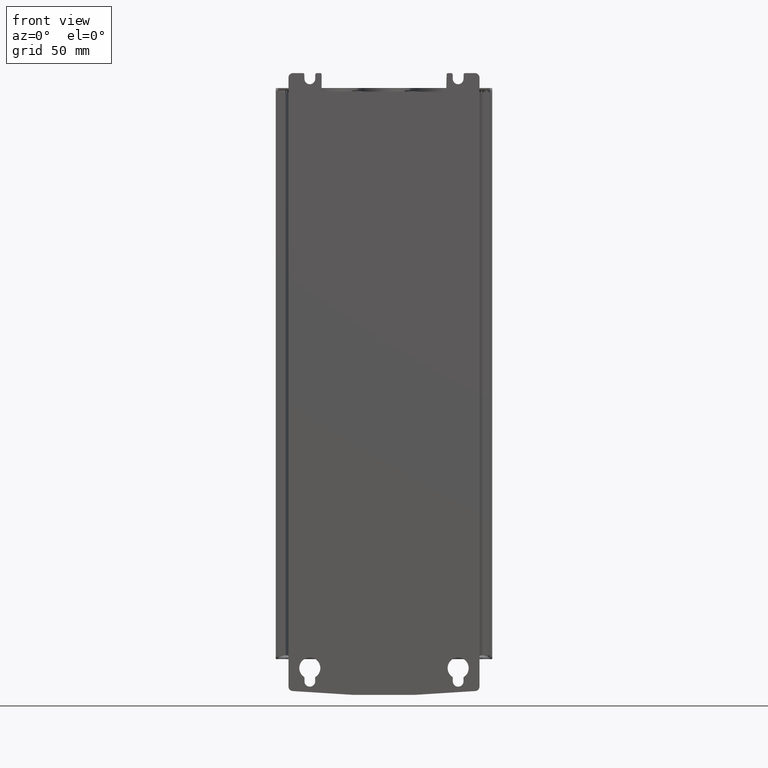
[diagram: clean part render]
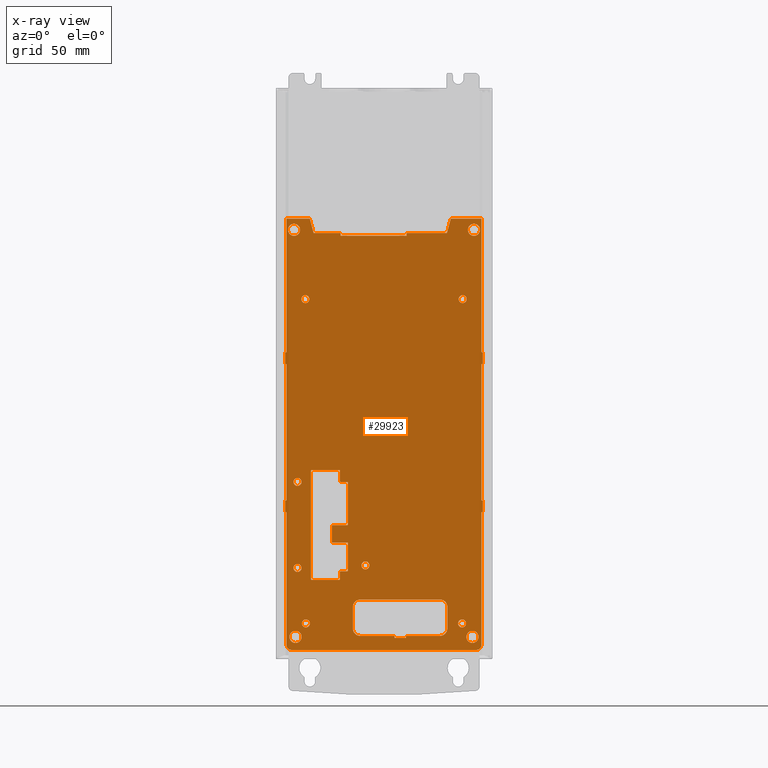
[diagram: x-ray — body ghosted, one internal face saturated and labeled with its STEP entity id]
A machine part, front view, then the same camera in x-ray: the body is ghosted and one INTERNAL B-rep face — a face not visible from any outside direction — is saturated and labeled: STEP entity #29923.
In plain terms, the highlighted planar face has unit normal (0, 1, 0).
Its self-contained STEP definition (entity closure, byte-faithful):
#26924=CARTESIAN_POINT('',(-7.704336030384E1,2.693888665624E1,
-2.609978598677E2));
#26925=DIRECTION('',(0.E0,-1.E0,0.E0));
#26926=DIRECTION('',(-9.999980315948E-1,0.E0,1.984138760385E-3));
#26927=AXIS2_PLACEMENT_3D('',#26924,#26925,#26926);
#26929=CARTESIAN_POINT('',(4.785667685526E1,2.693888665624E1,
-2.609978598677E2));
#26930=DIRECTION('',(0.E0,-1.E0,0.E0));
#26931=DIRECTION('',(0.E0,0.E0,-1.E0));
#26932=AXIS2_PLACEMENT_3D('',#26929,#26930,#26931);
#26934=DIRECTION('',(1.E0,0.E0,0.E0));
#26935=VECTOR('',#26934,1.E0);
#26936=CARTESIAN_POINT('',(5.105667685526E1,2.693888665624E1,
-1.714689618791E2));
#26937=LINE('',#26936,#26935);
#26938=DIRECTION('',(0.E0,0.E0,1.E0));
#26939=VECTOR('',#26938,8.E0);
#26940=CARTESIAN_POINT('',(5.205667685526E1,2.693888665624E1,
-1.714689618791E2));
#26941=LINE('',#26940,#26939);
#26942=DIRECTION('',(-1.E0,0.E0,0.E0));
#26943=VECTOR('',#26942,1.E0);
#26944=CARTESIAN_POINT('',(5.205667685526E1,2.693888665624E1,
-1.634689618791E2));
#26945=LINE('',#26944,#26943);
#26946=DIRECTION('',(1.E0,0.E0,1.421085471520E-14));
#26947=VECTOR('',#26946,1.E0);
#26948=CARTESIAN_POINT('',(5.105667685526E1,2.693888665624E1,
-7.146896187909E1));
#26949=LINE('',#26948,#26947);
#26950=DIRECTION('',(0.E0,0.E0,1.E0));
#26951=VECTOR('',#26950,8.E0);
#26952=CARTESIAN_POINT('',(5.205667685526E1,2.693888665624E1,
-7.146896187909E1));
#26953=LINE('',#26952,#26951);
#26954=DIRECTION('',(-1.E0,0.E0,2.842170943040E-14));
#26955=VECTOR('',#26954,1.E0);
#26956=CARTESIAN_POINT('',(5.205667685526E1,2.693888665624E1,
-6.346896187909E1));
#26957=LINE('',#26956,#26955);
#26958=DIRECTION('',(-2.588190503865E-1,0.E0,-9.659258248732E-1));
#26959=VECTOR('',#26958,1.008566196902E1);
#26960=CARTESIAN_POINT('',(3.046419074986E1,2.693888665624E1,2.653103812091E1));
#26961=LINE('',#26960,#26959);
#26962=DIRECTION('',(-1.E0,0.E0,3.174680134834E-8));
#26963=VECTOR('',#26962,2.718176355172E1);
#26964=CARTESIAN_POINT('',(2.785382929652E1,2.693888665624E1,1.678903676409E1));
#26965=LINE('',#26964,#26963);
#26966=DIRECTION('',(1.419146042472E-5,1.344278109441E-14,-9.999999998993E-1));
#26967=VECTOR('',#26966,1.849988895671E0);
#26968=CARTESIAN_POINT('',(6.720657447989E-1,2.693888665624E1,
1.678903762703E1));
#26969=LINE('',#26968,#26967);
#26970=DIRECTION('',(-9.999999999993E-1,1.160562098657E-13,-1.156538287751E-6));
#26971=VECTOR('',#26970,1.499988414775E0);
#26972=CARTESIAN_POINT('',(6.720919988431E-1,2.693888665624E1,
1.493904873154E1));
#26973=LINE('',#26972,#26971);
#26974=DIRECTION('',(-1.683766047401E-5,-1.110857501164E-11,9.999999998582E-1));
#26975=VECTOR('',#26974,9.786407208610E-2);
#26976=CARTESIAN_POINT('',(-8.278964159309E-1,2.693888665624E1,
1.493904699675E1));
#26977=LINE('',#26976,#26975);
#26978=DIRECTION('',(-7.271962617147E-5,1.006004706461E-11,-9.999999973559E-1));
#26979=VECTOR('',#26978,9.782277187247E-2);
#26980=CARTESIAN_POINT('',(-3.827929403480E0,2.693888665624E1,
1.503686089252E1));
#26981=LINE('',#26980,#26979);
#26982=DIRECTION('',(-1.E0,0.E0,0.E0));
#26983=VECTOR('',#26982,3.549999988690E1);
#26984=CARTESIAN_POINT('',(-3.827936517115E0,2.693888665624E1,
1.493903812091E1));
#26985=LINE('',#26984,#26983);
#26986=DIRECTION('',(7.337595274109E-5,-3.926228036270E-12,9.999999973080E-1));
#26987=VECTOR('',#26986,9.682075521848E-2);
#26988=CARTESIAN_POINT('',(-3.932793640401E1,2.693888665624E1,
1.493903812091E1));
#26989=LINE('',#26988,#26987);
#26990=DIRECTION('',(1.412008748366E-5,3.997061615708E-12,-9.999999999003E-1));
#26991=VECTOR('',#26990,9.688261733756E-2);
#26992=CARTESIAN_POINT('',(-4.232789810643E1,2.693888665624E1,
1.503581326037E1));
#26993=LINE('',#26992,#26991);
#26994=DIRECTION('',(-9.999999995911E-1,0.E0,2.859705803758E-5));
#26995=VECTOR('',#26994,1.500058072323E0);
#26996=CARTESIAN_POINT('',(-4.232789673844E1,2.693888665624E1,
1.493893064304E1));
#26997=LINE('',#26996,#26995);
#26998=DIRECTION('',(-2.811342211826E-12,0.E0,1.E0));
#26999=VECTOR('',#26998,1.850067488720E0);
#27000=CARTESIAN_POINT('',(-4.382795481015E1,2.693888665624E1,
1.493897354029E1));
#27001=LINE('',#27000,#26999);
#27002=DIRECTION('',(-1.E0,0.E0,3.175148417967E-8));
#27003=VECTOR('',#27002,1.818134285756E1);
#27004=CARTESIAN_POINT('',(-4.382795481015E1,2.693888665624E1,
1.678904102901E1));
#27005=LINE('',#27004,#27003);
#27006=DIRECTION('',(-2.588189971544E-1,0.E0,9.659258391367E-1));
#27007=VECTOR('',#27006,1.008565680696E1);
#27008=CARTESIAN_POINT('',(-6.200929766771E1,2.693888665624E1,
1.678904160629E1));
#27009=LINE('',#27008,#27007);
#27010=DIRECTION('',(-1.E0,0.E0,-1.123966213945E-9));
#27011=VECTOR('',#27010,9.984942745606E-1);
#27012=CARTESIAN_POINT('',(-8.024590566609E1,2.693888665624E1,
-6.346896187785E1));
#27013=LINE('',#27012,#27011);
#27014=DIRECTION('',(0.E0,0.E0,-1.E0));
#27015=VECTOR('',#27014,8.000000000238E0);
#27016=CARTESIAN_POINT('',(-8.124439994065E1,2.693888665624E1,
-6.346896187897E1));
#27017=LINE('',#27016,#27015);
#27018=DIRECTION('',(1.E0,0.E0,-1.149987234608E-9));
#27019=VECTOR('',#27018,9.990959631089E-1);
#27020=CARTESIAN_POINT('',(-8.124439994065E1,2.693888665624E1,
-7.146896187921E1));
#27021=LINE('',#27020,#27019);
#27022=DIRECTION('',(-1.E0,0.E0,-1.152648049971E-9));
#27023=VECTOR('',#27022,9.996499122582E-1);
#27024=CARTESIAN_POINT('',(-8.024475002839E1,2.693888665624E1,
-1.634689618778E2));
#27025=LINE('',#27024,#27023);
#27026=DIRECTION('',(0.E0,0.E0,-1.E0));
#27027=VECTOR('',#27026,7.999990678955E0);
#27028=CARTESIAN_POINT('',(-8.124439994065E1,2.693888665624E1,
-1.634689618790E2));
#27029=LINE('',#27028,#27027);
#27030=DIRECTION('',(9.999999999930E-1,0.E0,-3.728653784017E-6));
#27031=VECTOR('',#27030,1.000259919078E0);
#27032=CARTESIAN_POINT('',(-8.124439994065E1,2.693888665624E1,
-1.714689525579E2));
#27033=LINE('',#27032,#27031);
#27034=CARTESIAN_POINT('',(-6.721995118762E1,2.693888665624E1,
-2.463627026737E2));
#27035=DIRECTION('',(0.E0,1.E0,0.E0));
#27036=DIRECTION('',(-1.E0,0.E0,0.E0));
#27037=AXIS2_PLACEMENT_3D('',#27034,#27035,#27036);
#27039=CARTESIAN_POINT('',(-6.721995118762E1,2.693888665624E1,
-2.463627026737E2));
#27040=DIRECTION('',(0.E0,1.E0,0.E0));
#27041=DIRECTION('',(1.E0,0.E0,0.E0));
#27042=AXIS2_PLACEMENT_3D('',#27039,#27040,#27041);
#27044=CARTESIAN_POINT('',(-2.707659012670E1,2.693888665624E1,
-2.072470239999E2));
#27045=DIRECTION('',(0.E0,1.E0,0.E0));
#27046=DIRECTION('',(-1.E0,0.E0,0.E0));
#27047=AXIS2_PLACEMENT_3D('',#27044,#27045,#27046);
#27049=CARTESIAN_POINT('',(-2.707659012670E1,2.693888665624E1,
-2.072470239999E2));
#27050=DIRECTION('',(0.E0,1.E0,0.E0));
#27051=DIRECTION('',(1.E0,0.E0,0.E0));
#27052=AXIS2_PLACEMENT_3D('',#27049,#27050,#27051);
#27054=CARTESIAN_POINT('',(-6.757660667598E1,2.693888665624E1,
-2.774676164228E1));
#27055=DIRECTION('',(0.E0,1.E0,0.E0));
#27056=DIRECTION('',(-1.E0,0.E0,0.E0));
#27057=AXIS2_PLACEMENT_3D('',#27054,#27055,#27056);
#27059=CARTESIAN_POINT('',(-6.757660667598E1,2.693888665624E1,
-2.774676164228E1));
#27060=DIRECTION('',(0.E0,1.E0,0.E0));
#27061=DIRECTION('',(1.E0,0.E0,0.E0));
#27062=AXIS2_PLACEMENT_3D('',#27059,#27060,#27061);
#27064=CARTESIAN_POINT('',(3.842339332402E1,2.693888665624E1,
-2.774676164228E1));
#27065=DIRECTION('',(0.E0,1.E0,0.E0));
#27066=DIRECTION('',(-1.E0,0.E0,0.E0));
#27067=AXIS2_PLACEMENT_3D('',#27064,#27065,#27066);
#27069=CARTESIAN_POINT('',(3.842339332402E1,2.693888665624E1,
-2.774676164228E1));
#27070=DIRECTION('',(0.E0,1.E0,0.E0));
#27071=DIRECTION('',(1.E0,0.E0,0.E0));
#27072=AXIS2_PLACEMENT_3D('',#27069,#27070,#27071);
#27074=CARTESIAN_POINT('',(4.606225512525E1,2.693888665624E1,1.900104938670E1));
#27075=DIRECTION('',(0.E0,1.E0,0.E0));
#27076=DIRECTION('',(-1.E0,0.E0,0.E0));
#27077=AXIS2_PLACEMENT_3D('',#27074,#27075,#27076);
#27079=CARTESIAN_POINT('',(4.606225512525E1,2.693888665624E1,1.900104938670E1));
#27080=DIRECTION('',(0.E0,1.E0,0.E0));
#27081=DIRECTION('',(1.E0,0.E0,0.E0));
#27082=AXIS2_PLACEMENT_3D('',#27079,#27080,#27081);
#27084=CARTESIAN_POINT('',(-7.521774487475E1,2.693888665624E1,
1.900103801496E1));
#27085=DIRECTION('',(0.E0,1.E0,0.E0));
#27086=DIRECTION('',(-1.E0,0.E0,0.E0));
#27087=AXIS2_PLACEMENT_3D('',#27084,#27085,#27086);
#27089=CARTESIAN_POINT('',(-7.521774487475E1,2.693888665624E1,
1.900103801496E1));
#27090=DIRECTION('',(0.E0,1.E0,0.E0));
#27091=DIRECTION('',(1.E0,0.E0,0.E0));
#27092=AXIS2_PLACEMENT_3D('',#27089,#27090,#27091);
#27094=CARTESIAN_POINT('',(-7.421774472280E1,2.693888665624E1,
-2.554432515955E2));
#27095=DIRECTION('',(0.E0,1.E0,0.E0));
#27096=DIRECTION('',(-1.E0,0.E0,0.E0));
#27097=AXIS2_PLACEMENT_3D('',#27094,#27095,#27096);
#27099=CARTESIAN_POINT('',(-7.421774472280E1,2.693888665624E1,
-2.554432515955E2));
#27100=DIRECTION('',(0.E0,1.E0,0.E0));
#27101=DIRECTION('',(1.E0,0.E0,0.E0));
#27102=AXIS2_PLACEMENT_3D('',#27099,#27100,#27101);
#27104=CARTESIAN_POINT('',(4.503254638263E1,2.693888665624E1,
-2.554432545955E2));
#27105=DIRECTION('',(0.E0,1.E0,0.E0));
#27106=DIRECTION('',(-1.E0,0.E0,0.E0));
#27107=AXIS2_PLACEMENT_3D('',#27104,#27105,#27106);
#27109=CARTESIAN_POINT('',(4.503254638263E1,2.693888665624E1,
-2.554432545955E2));
#27110=DIRECTION('',(0.E0,1.E0,0.E0));
#27111=DIRECTION('',(1.E0,0.E0,0.E0));
#27112=AXIS2_PLACEMENT_3D('',#27109,#27110,#27111);
#27114=DIRECTION('',(4.027649348001E-9,-5.263284255741E-14,-1.E0));
#27115=VECTOR('',#27114,1.349998786376E0);
#27116=CARTESIAN_POINT('',(6.901003481007E-2,2.693888665624E1,
-2.547467106121E2));
#27117=LINE('',#27116,#27115);
#27118=DIRECTION('',(-1.E0,0.E0,-3.144600369572E-9));
#27119=VECTOR('',#27118,7.6E0);
#27120=CARTESIAN_POINT('',(6.901004024739E-2,2.693888665624E1,
-2.560967093985E2));
#27121=LINE('',#27120,#27119);
#27122=DIRECTION('',(-4.027469334609E-9,-5.263284614670E-14,1.E0));
#27123=VECTOR('',#27122,1.349998694313E0);
#27124=CARTESIAN_POINT('',(-7.530989959753E0,2.693888665624E1,
-2.560967094224E2));
#27125=LINE('',#27124,#27123);
#27126=DIRECTION('',(-1.E0,0.E0,-3.594049337041E-9));
#27127=VECTOR('',#27126,2.304500049223E1);
#27128=CARTESIAN_POINT('',(-7.530989965190E0,2.693888665624E1,
-2.547467107281E2));
#27129=LINE('',#27128,#27127);
#27130=CARTESIAN_POINT('',(-3.057599003617E1,2.693888665624E1,
-2.497467108329E2));
#27131=DIRECTION('',(1.747954494960E-14,1.E0,0.E0));
#27132=DIRECTION('',(-2.002684922786E-7,0.E0,-1.E0));
#27133=AXIS2_PLACEMENT_3D('',#27130,#27131,#27132);
#27135=DIRECTION('',(8.565568140606E-11,0.E0,1.E0));
#27136=VECTOR('',#27135,1.450000006349E1);
#27137=CARTESIAN_POINT('',(-3.557599003586E1,2.693888665624E1,
-2.497467108419E2));
#27138=LINE('',#27137,#27136);
#27139=CARTESIAN_POINT('',(-3.057599003431E1,2.693888665624E1,
-2.352467107729E2));
#27140=DIRECTION('',(1.793930604132E-14,1.E0,0.E0));
#27141=DIRECTION('',(-1.E0,1.776356839400E-14,-2.679371391423E-9));
#27142=AXIS2_PLACEMENT_3D('',#27139,#27140,#27141);
#27144=DIRECTION('',(1.E0,0.E0,4.043900048154E-9));
#27145=VECTOR('',#27144,5.368999937366E1);
#27146=CARTESIAN_POINT('',(-3.057598837721E1,2.693888665624E1,
-2.302467107186E2));
#27147=LINE('',#27146,#27145);
#27148=CARTESIAN_POINT('',(2.311400995573E1,2.693888665624E1,
-2.352467104472E2));
#27149=DIRECTION('',(1.747954489546E-14,1.E0,0.E0));
#27150=DIRECTION('',(4.860260389705E-7,0.E0,9.999999999999E-1));
#27151=AXIS2_PLACEMENT_3D('',#27148,#27149,#27150);
#27153=DIRECTION('',(4.043589462306E-9,0.E0,-1.E0));
#27154=VECTOR('',#27153,1.449999989361E1);
#27155=CARTESIAN_POINT('',(2.811400997039E1,2.693888665624E1,
-2.352467108726E2));
#27156=LINE('',#27155,#27154);
#27157=CARTESIAN_POINT('',(2.311401004368E1,2.693888665624E1,
-2.497467105073E2));
#27158=DIRECTION('',(1.669406939995E-14,1.E0,0.E0));
#27159=DIRECTION('',(1.E0,-1.634248292248E-14,-1.267985396680E-7));
#27160=AXIS2_PLACEMENT_3D('',#27157,#27158,#27159);
#27162=DIRECTION('',(-1.E0,0.E0,-3.594049519325E-9));
#27163=VECTOR('',#27162,2.304499932344E1);
#27164=CARTESIAN_POINT('',(2.311400935825E1,2.693888665624E1,
-2.547467105293E2));
#27165=LINE('',#27164,#27163);
#27166=CARTESIAN_POINT('',(-3.939116187636E1,2.693888665624E1,
-1.796020985606E2));
#27167=DIRECTION('',(0.E0,1.E0,0.E0));
#27168=DIRECTION('',(9.999998112727E-1,0.E0,-6.143732816784E-4));
#27169=AXIS2_PLACEMENT_3D('',#27166,#27167,#27168);
#27171=DIRECTION('',(-9.999999999986E-1,0.E0,-1.686082529646E-6));
#27172=VECTOR('',#27171,9.885240053594E0);
#27173=CARTESIAN_POINT('',(-3.939123118077E1,2.693888665624E1,
-1.801021027270E2));
#27174=LINE('',#27173,#27172);
#27175=CARTESIAN_POINT('',(-4.927651041762E1,2.693888665624E1,
-1.806021235611E2));
#27176=DIRECTION('',(0.E0,-1.E0,0.E0));
#27177=DIRECTION('',(1.833682525501E-4,0.E0,9.999999831880E-1));
#27178=AXIS2_PLACEMENT_3D('',#27175,#27176,#27177);
#27180=DIRECTION('',(1.685976886987E-6,0.E0,-9.999999999986E-1));
#27181=VECTOR('',#27180,1.068996768284E1);
#27182=CARTESIAN_POINT('',(-4.977650591129E1,2.693888665624E1,
-1.806020485841E2));
#27183=LINE('',#27182,#27181);
#27184=CARTESIAN_POINT('',(-4.927648338236E1,2.693888665624E1,
-1.912920587426E2));
#27185=DIRECTION('',(-1.675194695297E-14,-1.E0,0.E0));
#27186=DIRECTION('',(-9.999999802990E-1,1.421085471520E-14,1.984995164435E-4));
#27187=AXIS2_PLACEMENT_3D('',#27184,#27185,#27186);
#27189=DIRECTION('',(9.999999999986E-1,0.E0,1.685926561208E-6));
#27190=VECTOR('',#27189,9.885481779347E0);
#27191=CARTESIAN_POINT('',(-4.927655262306E1,2.693888665624E1,
-1.917920545755E2));
#27192=LINE('',#27191,#27190);
#27193=CARTESIAN_POINT('',(-3.939112978300E1,2.693888665624E1,
-1.922920337422E2));
#27194=DIRECTION('',(0.E0,1.E0,0.E0));
#27195=DIRECTION('',(2.141985178667E-4,0.E0,9.999999770595E-1));
#27196=AXIS2_PLACEMENT_3D('',#27193,#27194,#27195);
#27198=DIRECTION('',(1.686022342438E-6,0.E0,-9.999999999986E-1));
#27199=VECTOR('',#27198,1.840790908269E1);
#27200=CARTESIAN_POINT('',(-3.889112202392E1,2.693888665624E1,
-1.922920789323E2));
#27201=LINE('',#27200,#27199);
#27202=CARTESIAN_POINT('',(-3.939108322879E1,2.693888665624E1,
-2.106999028200E2));
#27203=DIRECTION('',(1.226637835550E-14,1.E0,-1.226631631136E-14));
#27204=DIRECTION('',(9.999999196229E-1,-1.421085471520E-14,-4.009417402814E-4));
#27205=AXIS2_PLACEMENT_3D('',#27202,#27203,#27204);
#27207=DIRECTION('',(-9.999999999986E-1,0.E0,-1.686053082773E-6));
#27208=VECTOR('',#27207,4.354979883637E0);
#27209=CARTESIAN_POINT('',(-3.939111304531E1,2.693888665624E1,
-2.111999046556E2));
#27210=LINE('',#27209,#27208);
#27211=CARTESIAN_POINT('',(-4.374610948104E1,2.693888665624E1,
-2.116999138340E2));
#27212=DIRECTION('',(6.133189177749E-14,-1.E0,-6.133158155681E-14));
#27213=DIRECTION('',(7.935501130874E-5,-6.394884621841E-14,9.999999968514E-1));
#27214=AXIS2_PLACEMENT_3D('',#27211,#27212,#27213);
#27216=DIRECTION('',(1.685993559975E-6,0.E0,-9.999999999986E-1));
#27217=VECTOR('',#27216,4.846942310446E0);
#27218=CARTESIAN_POINT('',(-4.424610743796E1,2.693888665624E1,
-2.116998805214E2));
#27219=LINE('',#27218,#27217);
#27220=CARTESIAN_POINT('',(-4.474609722307E1,2.693888665624E1,
-2.165468013293E2));
#27221=DIRECTION('',(1.963321228804E-14,1.E0,-1.962844162558E-14));
#27222=DIRECTION('',(9.999999946220E-1,-2.131628207281E-14,-1.037109632307E-4));
#27223=AXIS2_PLACEMENT_3D('',#27220,#27221,#27222);
#27225=DIRECTION('',(-9.999998304355E-1,-8.747492713522E-8,-5.823477221949E-4));
#27226=VECTOR('',#27225,9.995008497841E-1);
#27227=CARTESIAN_POINT('',(-4.474659387872E1,2.693888728694E1,
-2.170468658851E2));
#27228=LINE('',#27227,#27226);
#27229=DIRECTION('',(-9.999987734602E-1,-3.451871771400E-5,-1.565850107498E-3));
#27230=VECTOR('',#27229,9.904713689613E-1);
#27231=CARTESIAN_POINT('',(-6.239568884924E1,2.693891031245E1,
-2.170492620559E2));
#27232=LINE('',#27231,#27230);
#27233=CARTESIAN_POINT('',(-6.338615900335E1,2.693887612265E1,
-2.170508129856E2));
#27234=CARTESIAN_POINT('',(-6.348026301511E1,2.693887612265E1,
-2.170504658385E2));
#27235=CARTESIAN_POINT('',(-6.364637207326E1,2.693889157191E1,
-2.170015936629E2));
#27236=CARTESIAN_POINT('',(-6.383330001795E1,2.693888525177E1,
-2.168143578892E2));
#27237=CARTESIAN_POINT('',(-6.388336758715E1,2.693888665622E1,
-2.166477475976E2));
#27238=CARTESIAN_POINT('',(-6.388326272533E1,2.693888665622E1,
-2.165505555750E2));
#27240=DIRECTION('',(-3.535347338529E-6,2.590577521780E-12,9.999999999938E-1));
#27241=VECTOR('',#27240,7.320387128595E1);
#27242=CARTESIAN_POINT('',(-6.388326272533E1,2.693888665622E1,
-2.165505555750E2));
#27243=LINE('',#27242,#27241);
#27244=CARTESIAN_POINT('',(-6.388352152644E1,2.693888665641E1,
-1.433466842895E2));
#27245=CARTESIAN_POINT('',(-6.388352203833E1,2.693888665641E1,
-1.432501206629E2));
#27246=CARTESIAN_POINT('',(-6.383324888936E1,2.693889098967E1,
-1.430831322870E2));
#27247=CARTESIAN_POINT('',(-6.364622419275E1,2.693887148897E1,
-1.428970289031E2));
#27248=CARTESIAN_POINT('',(-6.347979705466E1,2.693891915757E1,
-1.428464467570E2));
#27249=CARTESIAN_POINT('',(-6.338105857974E1,2.693891915757E1,
-1.428467368963E2));
#27251=DIRECTION('',(9.999985787484E-1,-5.599584728919E-6,1.685962561547E-3));
#27252=VECTOR('',#27251,9.845714630891E-1);
#27253=CARTESIAN_POINT('',(-6.338105857974E1,2.693891915757E1,
-1.428467368963E2));
#27254=LINE('',#27253,#27252);
#27255=DIRECTION('',(9.999985711547E-1,-3.640517589579E-5,1.690077900419E-3));
#27256=VECTOR('',#27255,1.003062678474E0);
#27257=CARTESIAN_POINT('',(-4.574649524853E1,2.693894859396E1,
-1.428417277082E2));
#27258=LINE('',#27257,#27256);
#27259=CARTESIAN_POINT('',(-4.474343400327E1,2.693891207729E1,
-1.428400324541E2));
#27260=CARTESIAN_POINT('',(-4.464952538175E1,2.693891207729E1,
-1.428403684202E2));
#27261=CARTESIAN_POINT('',(-4.448330570461E1,2.693887479309E1,
-1.428891831751E2));
#27262=CARTESIAN_POINT('',(-4.429639124574E1,2.693889004570E1,
-1.430764244858E2));
#27263=CARTESIAN_POINT('',(-4.424639537603E1,2.693888665626E1,
-1.432429270098E2));
#27264=CARTESIAN_POINT('',(-4.424644212663E1,2.693888665626E1,
-1.433398697530E2));
#27266=DIRECTION('',(1.860390008709E-5,-3.254007478921E-12,-9.999999998269E-1));
#27267=VECTOR('',#27266,7.106502823091E0);
#27268=CARTESIAN_POINT('',(-4.424644212663E1,2.693888665626E1,
-1.433398697530E2));
#27269=LINE('',#27268,#27267);
#27270=CARTESIAN_POINT('',(-4.374627686724E1,2.693888665624E1,
-1.504466798343E2));
#27271=DIRECTION('',(0.E0,-1.E0,0.E0));
#27272=DIRECTION('',(-9.999989511431E-1,0.E0,1.448348274664E-3));
#27273=AXIS2_PLACEMENT_3D('',#27270,#27271,#27272);
#27275=DIRECTION('',(9.999999999986E-1,0.E0,1.686001991265E-6));
#27276=VECTOR('',#27275,4.355091372303E0);
#27277=CARTESIAN_POINT('',(-4.374630525878E1,2.693888665624E1,
-1.509466779986E2));
#27278=LINE('',#27277,#27276);
#27279=CARTESIAN_POINT('',(-3.939123308253E1,2.693888665624E1,
-1.514466688202E2));
#27280=DIRECTION('',(6.869137134364E-14,1.E0,6.869171879079E-14));
#27281=DIRECTION('',(9.295160897693E-5,-7.105427357601E-14,9.999999956800E-1));
#27282=AXIS2_PLACEMENT_3D('',#27279,#27280,#27281);
#27284=DIRECTION('',(1.686151882543E-6,0.E0,-9.999999999986E-1));
#27285=VECTOR('',#27284,2.815536080514E1);
#27286=CARTESIAN_POINT('',(-3.889122121828E1,2.693888665624E1,
-1.514468686901E2));
#27287=LINE('',#27286,#27285);
#27288=CARTESIAN_POINT('',(-7.288354589409E1,2.693888665624E1,
-1.509513761169E2));
#27289=DIRECTION('',(0.E0,1.E0,0.E0));
#27290=DIRECTION('',(-1.E0,0.E0,0.E0));
#27291=AXIS2_PLACEMENT_3D('',#27288,#27289,#27290);
#27293=CARTESIAN_POINT('',(-7.288354589409E1,2.693888665624E1,
-1.509513761169E2));
#27294=DIRECTION('',(0.E0,1.E0,0.E0));
#27295=DIRECTION('',(1.E0,0.E0,0.E0));
#27296=AXIS2_PLACEMENT_3D('',#27293,#27294,#27295);
#27298=CARTESIAN_POINT('',(-7.288323843520E1,2.693888665624E1,
-2.089513761161E2));
#27299=DIRECTION('',(0.E0,1.E0,0.E0));
#27300=DIRECTION('',(-1.E0,0.E0,0.E0));
#27301=AXIS2_PLACEMENT_3D('',#27298,#27299,#27300);
#27303=CARTESIAN_POINT('',(-7.288323843520E1,2.693888665624E1,
-2.089513761161E2));
#27304=DIRECTION('',(0.E0,1.E0,0.E0));
#27305=DIRECTION('',(1.E0,0.E0,0.E0));
#27306=AXIS2_PLACEMENT_3D('',#27303,#27304,#27305);
#27308=CARTESIAN_POINT('',(3.806003569242E1,2.693888665624E1,
-2.463627139962E2));
#27309=DIRECTION('',(0.E0,1.E0,0.E0));
#27310=DIRECTION('',(-1.E0,0.E0,-1.052655904830E-14));
#27311=AXIS2_PLACEMENT_3D('',#27308,#27309,#27310);
#27313=CARTESIAN_POINT('',(3.806003569242E1,2.693888665624E1,
-2.463627139962E2));
#27314=DIRECTION('',(0.E0,1.E0,0.E0));
#27315=DIRECTION('',(1.E0,0.E0,-1.052655904830E-14));
#27316=AXIS2_PLACEMENT_3D('',#27313,#27314,#27315);
#27322=DIRECTION('',(-1.E0,0.E0,0.E0));
#27323=VECTOR('',#27322,1.249000371591E2);
#27324=CARTESIAN_POINT('',(4.785667685526E1,2.693888665624E1,
-2.641978598677E2));
#27325=LINE('',#27324,#27323);
#27342=DIRECTION('',(0.E0,0.E0,-1.E0));
#27343=VECTOR('',#27342,8.952889798860E1);
#27344=CARTESIAN_POINT('',(5.105667685526E1,2.693888665624E1,
-1.714689618791E2));
#27345=LINE('',#27344,#27343);
#27358=DIRECTION('',(0.E0,0.E0,-1.E0));
#27359=VECTOR('',#27358,9.200000000001E1);
#27360=CARTESIAN_POINT('',(5.105667685526E1,2.693888665624E1,
-7.146896187909E1));
#27361=LINE('',#27360,#27359);
#27390=DIRECTION('',(0.E0,0.E0,-1.E0));
#27391=VECTOR('',#27390,9.E1);
#27392=CARTESIAN_POINT('',(5.105667685526E1,2.693888665624E1,2.653103812091E1));
#27393=LINE('',#27392,#27391);
#27398=DIRECTION('',(1.E0,0.E0,-1.380198062775E-14));
#27399=VECTOR('',#27398,2.059248610540E1);
#27400=CARTESIAN_POINT('',(3.046419074986E1,2.693888665624E1,2.653103812091E1));
#27401=LINE('',#27400,#27399);
#27471=DIRECTION('',(9.999999998601E-1,8.763268860272E-14,1.672525793369E-5));
#27472=VECTOR('',#27471,3.000031340167E0);
#27473=CARTESIAN_POINT('',(-3.827929403480E0,2.693888665624E1,
1.503686089252E1));
#27474=LINE('',#27473,#27472);
#27632=DIRECTION('',(1.E0,0.E0,7.178751366210E-11));
#27633=VECTOR('',#27632,1.562679032474E1);
#27634=CARTESIAN_POINT('',(-8.024644757287E1,2.693888665624E1,
2.653103811968E1));
#27635=LINE('',#27634,#27633);
#27640=DIRECTION('',(-6.021186412612E-6,0.E0,9.999999999819E-1));
#27641=VECTOR('',#27640,8.999999999915E1);
#27642=CARTESIAN_POINT('',(-8.024590566609E1,2.693888665624E1,
-6.346896187785E1));
#27643=LINE('',#27642,#27641);
#27660=DIRECTION('',(-6.021186406027E-6,0.E0,9.999999999819E-1));
#27661=VECTOR('',#27660,9.199999999915E1);
#27662=CARTESIAN_POINT('',(-8.024475002839E1,2.693888665624E1,
-1.634689618778E2));
#27663=LINE('',#27662,#27661);
#27684=DIRECTION('',(-6.883366131091E-6,0.E0,9.999999999763E-1));
#27685=VECTOR('',#27684,8.952541697551E1);
#27686=CARTESIAN_POINT('',(-8.024352378536E1,2.693888665624E1,
-2.609943732610E2));
#27687=LINE('',#27686,#27685);
#27696=DIRECTION('',(9.999999998844E-1,0.E0,1.520532513253E-5));
#27697=VECTOR('',#27696,2.999968807077E0);
#27698=CARTESIAN_POINT('',(-4.232789810643E1,2.693888665624E1,
1.503581326037E1));
#27699=LINE('',#27698,#27697);
#28531=DIRECTION('',(-9.999999797660E-1,-2.099074664057E-6,-2.011554812761E-4));
#28532=VECTOR('',#28531,1.664999360435E1);
#28533=CARTESIAN_POINT('',(-4.574649524853E1,2.693894859396E1,
-1.428417277082E2));
#28534=LINE('',#28533,#28532);
#28611=DIRECTION('',(9.999999940631E-1,-1.388198271698E-6,1.089584331569E-4));
#28612=VECTOR('',#28611,1.664959438907E1);
#28613=CARTESIAN_POINT('',(-6.239568884924E1,2.693891031245E1,
-2.170492620559E2));
#28614=LINE('',#28613,#28612);
#28946=CARTESIAN_POINT('',(-8.024335400494E1,2.693888665624E1,
-2.609915106237E2));
#28947=CARTESIAN_POINT('',(-7.704336030384E1,2.693888665624E1,
-2.641978598677E2));
#28948=VERTEX_POINT('',#28946);
#28949=VERTEX_POINT('',#28947);
#28950=CARTESIAN_POINT('',(4.785667685526E1,2.693888665624E1,
-2.641978598677E2));
#28951=VERTEX_POINT('',#28950);
#28952=CARTESIAN_POINT('',(5.105667685526E1,2.693888665624E1,
-2.609978598677E2));
#28953=VERTEX_POINT('',#28952);
#28954=CARTESIAN_POINT('',(5.105667685526E1,2.693888665624E1,
-1.714689618791E2));
#28955=VERTEX_POINT('',#28954);
#28956=CARTESIAN_POINT('',(5.205667685526E1,2.693888665624E1,
-1.714689618791E2));
#28957=VERTEX_POINT('',#28956);
#28958=CARTESIAN_POINT('',(5.205667685526E1,2.693888665624E1,
-1.634689618791E2));
#28959=VERTEX_POINT('',#28958);
#28960=CARTESIAN_POINT('',(5.105667685526E1,2.693888665624E1,
-1.634689618791E2));
#28961=VERTEX_POINT('',#28960);
#28962=CARTESIAN_POINT('',(5.105667685526E1,2.693888665624E1,
-7.146896187909E1));
#28963=VERTEX_POINT('',#28962);
#28964=CARTESIAN_POINT('',(5.205667685526E1,2.693888665624E1,
-7.146896187909E1));
#28965=VERTEX_POINT('',#28964);
#28966=CARTESIAN_POINT('',(5.205667685526E1,2.693888665624E1,
-6.346896187909E1));
#28967=VERTEX_POINT('',#28966);
#28968=CARTESIAN_POINT('',(5.105667685526E1,2.693888665624E1,
-6.346896187909E1));
#28969=VERTEX_POINT('',#28968);
#28970=CARTESIAN_POINT('',(5.105667685526E1,2.693888665624E1,2.653103812091E1));
#28971=VERTEX_POINT('',#28970);
#28972=CARTESIAN_POINT('',(3.046419074986E1,2.693888665624E1,2.653103812091E1));
#28973=VERTEX_POINT('',#28972);
#28974=CARTESIAN_POINT('',(2.785382929652E1,2.693888665624E1,1.678903676409E1));
#28975=VERTEX_POINT('',#28974);
#28976=CARTESIAN_POINT('',(6.720657447989E-1,2.693888665624E1,
1.678903762703E1));
#28977=VERTEX_POINT('',#28976);
#28978=CARTESIAN_POINT('',(6.720919988431E-1,2.693888665624E1,
1.493904873154E1));
#28979=VERTEX_POINT('',#28978);
#28980=CARTESIAN_POINT('',(-8.278964159309E-1,2.693888665624E1,
1.493904699675E1));
#28981=VERTEX_POINT('',#28980);
#28982=CARTESIAN_POINT('',(-8.278980637329E-1,2.693888665624E1,
1.503691106882E1));
#28983=VERTEX_POINT('',#28982);
#28984=CARTESIAN_POINT('',(-3.827929403480E0,2.693888665624E1,
1.503686089252E1));
#28985=VERTEX_POINT('',#28984);
#28986=CARTESIAN_POINT('',(-3.827936517115E0,2.693888665624E1,
1.493903812091E1));
#28987=VERTEX_POINT('',#28986);
#28988=CARTESIAN_POINT('',(-3.932793640401E1,2.693888665624E1,
1.493903812091E1));
#28989=VERTEX_POINT('',#28988);
#28990=CARTESIAN_POINT('',(-3.932792929970E1,2.693888665624E1,
1.503585887587E1));
#28991=VERTEX_POINT('',#28990);
#28992=CARTESIAN_POINT('',(-4.232789810643E1,2.693888665624E1,
1.503581326037E1));
#28993=VERTEX_POINT('',#28992);
#28994=CARTESIAN_POINT('',(-4.232789673844E1,2.693888665624E1,
1.493893064304E1));
#28995=VERTEX_POINT('',#28994);
#28996=CARTESIAN_POINT('',(-4.382795481015E1,2.693888665624E1,
1.493897354029E1));
#28997=VERTEX_POINT('',#28996);
#28998=CARTESIAN_POINT('',(-4.382795481015E1,2.693888665624E1,
1.678904102901E1));
#28999=VERTEX_POINT('',#28998);
#29000=CARTESIAN_POINT('',(-6.200929766771E1,2.693888665624E1,
1.678904160629E1));
#29001=VERTEX_POINT('',#29000);
#29002=CARTESIAN_POINT('',(-6.461965724813E1,2.693888665624E1,
2.653103812080E1));
#29003=VERTEX_POINT('',#29002);
#29004=CARTESIAN_POINT('',(-8.024644757287E1,2.693888665624E1,
2.653103811968E1));
#29005=VERTEX_POINT('',#29004);
#29006=CARTESIAN_POINT('',(-8.024590566609E1,2.693888665624E1,
-6.346896187785E1));
#29007=VERTEX_POINT('',#29006);
#29008=CARTESIAN_POINT('',(-8.124439994065E1,2.693888665624E1,
-6.346896187897E1));
#29009=VERTEX_POINT('',#29008);
#29010=CARTESIAN_POINT('',(-8.124439994065E1,2.693888665624E1,
-7.146896187921E1));
#29011=VERTEX_POINT('',#29010);
#29012=CARTESIAN_POINT('',(-8.024530397754E1,2.693888665624E1,
-7.146896188035E1));
#29013=VERTEX_POINT('',#29012);
#29014=CARTESIAN_POINT('',(-8.024475002839E1,2.693888665624E1,
-1.634689618778E2));
#29015=VERTEX_POINT('',#29014);
#29016=CARTESIAN_POINT('',(-8.124439994065E1,2.693888665624E1,
-1.634689618790E2));
#29017=VERTEX_POINT('',#29016);
#29018=CARTESIAN_POINT('',(-8.124439994065E1,2.693888665624E1,
-1.714689525579E2));
#29019=VERTEX_POINT('',#29018);
#29020=CARTESIAN_POINT('',(-8.024414002158E1,2.693888665624E1,
-1.714689562876E2));
#29021=VERTEX_POINT('',#29020);
#29022=CARTESIAN_POINT('',(-6.991995118762E1,2.693888665624E1,
-2.463627026737E2));
#29023=CARTESIAN_POINT('',(-6.451995118762E1,2.693888665624E1,
-2.463627026737E2));
#29024=VERTEX_POINT('',#29022);
#29025=VERTEX_POINT('',#29023);
#29026=CARTESIAN_POINT('',(-2.977659012670E1,2.693888665624E1,
-2.072470239999E2));
#29027=CARTESIAN_POINT('',(-2.437659012670E1,2.693888665624E1,
-2.072470239999E2));
#29028=VERTEX_POINT('',#29026);
#29029=VERTEX_POINT('',#29027);
#29030=CARTESIAN_POINT('',(-7.027660667598E1,2.693888665624E1,
-2.774676164228E1));
#29031=CARTESIAN_POINT('',(-6.487660667598E1,2.693888665624E1,
-2.774676164228E1));
#29032=VERTEX_POINT('',#29030);
#29033=VERTEX_POINT('',#29031);
#29034=CARTESIAN_POINT('',(3.572339332402E1,2.693888665624E1,
-2.774676164228E1));
#29035=CARTESIAN_POINT('',(4.112339332402E1,2.693888665624E1,
-2.774676164228E1));
#29036=VERTEX_POINT('',#29034);
#29037=VERTEX_POINT('',#29035);
#29038=CARTESIAN_POINT('',(4.196225512525E1,2.693888665624E1,1.900104938670E1));
#29039=CARTESIAN_POINT('',(5.016225512525E1,2.693888665624E1,1.900104938670E1));
#29040=VERTEX_POINT('',#29038);
#29041=VERTEX_POINT('',#29039);
#29042=CARTESIAN_POINT('',(-7.931774487475E1,2.693888665624E1,
1.900103801496E1));
#29043=CARTESIAN_POINT('',(-7.111774487475E1,2.693888665624E1,
1.900103801496E1));
#29044=VERTEX_POINT('',#29042);
#29045=VERTEX_POINT('',#29043);
#29046=CARTESIAN_POINT('',(-7.831774472280E1,2.693888665624E1,
-2.554432515955E2));
#29047=CARTESIAN_POINT('',(-7.011774472280E1,2.693888665624E1,
-2.554432515955E2));
#29048=VERTEX_POINT('',#29046);
#29049=VERTEX_POINT('',#29047);
#29050=CARTESIAN_POINT('',(4.093254638263E1,2.693888665624E1,
-2.554432545955E2));
#29051=CARTESIAN_POINT('',(4.913254638263E1,2.693888665624E1,
-2.554432545955E2));
#29052=VERTEX_POINT('',#29050);
#29053=VERTEX_POINT('',#29051);
#29054=CARTESIAN_POINT('',(6.901003481007E-2,2.693888665624E1,
-2.547467106121E2));
#29055=CARTESIAN_POINT('',(6.901004024739E-2,2.693888665624E1,
-2.560967093985E2));
#29056=VERTEX_POINT('',#29054);
#29057=VERTEX_POINT('',#29055);
#29058=CARTESIAN_POINT('',(-7.530989959753E0,2.693888665624E1,
-2.560967094224E2));
#29059=VERTEX_POINT('',#29058);
#29060=CARTESIAN_POINT('',(-7.530989965190E0,2.693888665624E1,
-2.547467107281E2));
#29061=VERTEX_POINT('',#29060);
#29062=CARTESIAN_POINT('',(-3.057599045742E1,2.693888665624E1,
-2.547467108109E2));
#29063=VERTEX_POINT('',#29062);
#29064=CARTESIAN_POINT('',(-3.557599003617E1,2.693888665624E1,
-2.497467108510E2));
#29065=VERTEX_POINT('',#29064);
#29066=CARTESIAN_POINT('',(-3.557599003462E1,2.693888665624E1,
-2.352467107784E2));
#29067=VERTEX_POINT('',#29066);
#29068=CARTESIAN_POINT('',(-3.057598678176E1,2.693888665624E1,
-2.302467107729E2));
#29069=VERTEX_POINT('',#29068);
#29070=CARTESIAN_POINT('',(2.311401099645E1,2.693888665624E1,
-2.302467105015E2));
#29071=VERTEX_POINT('',#29070);
#29072=CARTESIAN_POINT('',(2.811400995573E1,2.693888665624E1,
-2.352467113034E2));
#29073=VERTEX_POINT('',#29072);
#29074=CARTESIAN_POINT('',(2.811401002902E1,2.693888665624E1,
-2.497467107662E2));
#29075=VERTEX_POINT('',#29074);
#29076=CARTESIAN_POINT('',(2.311400869009E1,2.693888665624E1,
-2.547467105073E2));
#29077=VERTEX_POINT('',#29076);
#29078=CARTESIAN_POINT('',(-3.889116197072E1,2.693888665624E1,
-1.796024057472E2));
#29079=CARTESIAN_POINT('',(-3.939130004402E1,2.693888665624E1,
-1.801020985415E2));
#29080=VERTEX_POINT('',#29078);
#29081=VERTEX_POINT('',#29079);
#29082=CARTESIAN_POINT('',(-4.927647123435E1,2.693888665624E1,
-1.801021193943E2));
#29083=VERTEX_POINT('',#29082);
#29084=CARTESIAN_POINT('',(-4.977651039532E1,2.693888665624E1,
-1.806019742283E2));
#29085=VERTEX_POINT('',#29084);
#29086=CARTESIAN_POINT('',(-4.977648788825E1,2.693888665624E1,
-1.912920162670E2));
#29087=VERTEX_POINT('',#29086);
#29088=CARTESIAN_POINT('',(-4.927662138592E1,2.693888665624E1,
-1.917920587236E2));
#29089=VERTEX_POINT('',#29088);
#29090=CARTESIAN_POINT('',(-3.939107084373E1,2.693888665624E1,
-1.917920379093E2));
#29091=VERTEX_POINT('',#29090);
#29092=CARTESIAN_POINT('',(-3.889112979026E1,2.693888665624E1,
-1.922921189616E2));
#29093=VERTEX_POINT('',#29092);
#29094=CARTESIAN_POINT('',(-3.889109098777E1,2.693888665624E1,
-2.106999880150E2));
#29095=VERTEX_POINT('',#29094);
#29096=CARTESIAN_POINT('',(-3.939114337026E1,2.693888665624E1,
-2.111999028164E2));
#29097=VERTEX_POINT('',#29096);
#29098=CARTESIAN_POINT('',(-4.374609292895E1,2.693888665624E1,
-2.111999119983E2));
#29099=VERTEX_POINT('',#29098);
#29100=CARTESIAN_POINT('',(-4.424610947655E1,2.693888665624E1,
-2.116998467940E2));
#29101=VERTEX_POINT('',#29100);
#29102=CARTESIAN_POINT('',(-4.424609926605E1,2.693888665624E1,
-2.165468228318E2));
#29103=VERTEX_POINT('',#29102);
#29104=CARTESIAN_POINT('',(-4.474728527973E1,2.693888665624E1,
-2.170467999178E2));
#29105=VERTEX_POINT('',#29104);
#29106=CARTESIAN_POINT('',(-4.574609455902E1,2.693888719951E1,
-2.170474479422E2));
#29107=VERTEX_POINT('',#29106);
#29108=CARTESIAN_POINT('',(-6.239568884924E1,2.693891031245E1,
-2.170492620559E2));
#29109=VERTEX_POINT('',#29108);
#29110=CARTESIAN_POINT('',(-6.338615900335E1,2.693887612265E1,
-2.170508129856E2));
#29111=VERTEX_POINT('',#29110);
#29112=VERTEX_POINT('',#27238);
#29113=CARTESIAN_POINT('',(-6.388352152644E1,2.693888665641E1,
-1.433466842895E2));
#29114=VERTEX_POINT('',#29113);
#29115=VERTEX_POINT('',#27249);
#29116=CARTESIAN_POINT('',(-6.239648851598E1,2.693891364438E1,
-1.428450769457E2));
#29117=VERTEX_POINT('',#29116);
#29118=CARTESIAN_POINT('',(-4.574649524853E1,2.693894859396E1,
-1.428417277082E2));
#29119=VERTEX_POINT('',#29118);
#29120=CARTESIAN_POINT('',(-4.474343400327E1,2.693891207729E1,
-1.428400324541E2));
#29121=VERTEX_POINT('',#29120);
#29122=VERTEX_POINT('',#27264);
#29123=CARTESIAN_POINT('',(-4.424630991796E1,2.693888665624E1,
-1.504463725749E2));
#29124=VERTEX_POINT('',#29123);
#29125=CARTESIAN_POINT('',(-4.374633696919E1,2.693888665624E1,
-1.509466798307E2));
#29126=VERTEX_POINT('',#29125);
#29127=CARTESIAN_POINT('',(-3.939121388648E1,2.693888665624E1,
-1.509466706559E2));
#29128=VERTEX_POINT('',#29127);
#29129=CARTESIAN_POINT('',(-3.889123323953E1,2.693888665624E1,
-1.514470650524E2));
#29130=VERTEX_POINT('',#29129);
#29131=CARTESIAN_POINT('',(-7.558354589409E1,2.693888665624E1,
-1.509513761169E2));
#29132=CARTESIAN_POINT('',(-7.018354589409E1,2.693888665624E1,
-1.509513761169E2));
#29133=VERTEX_POINT('',#29131);
#29134=VERTEX_POINT('',#29132);
#29135=CARTESIAN_POINT('',(-7.558323843520E1,2.693888665624E1,
-2.089513761161E2));
#29136=CARTESIAN_POINT('',(-7.018323843520E1,2.693888665624E1,
-2.089513761161E2));
#29137=VERTEX_POINT('',#29135);
#29138=VERTEX_POINT('',#29136);
#29139=CARTESIAN_POINT('',(3.536003569242E1,2.693888665624E1,
-2.463627139962E2));
#29140=CARTESIAN_POINT('',(4.076003569242E1,2.693888665624E1,
-2.463627139962E2));
#29141=VERTEX_POINT('',#29139);
#29142=VERTEX_POINT('',#29140);
#29691=CARTESIAN_POINT('',(-8.701186797382E1,2.693888665624E1,
4.126748302034E1));
#29692=DIRECTION('',(0.E0,1.E0,0.E0));
#29693=DIRECTION('',(1.E0,0.E0,0.E0));
#29694=AXIS2_PLACEMENT_3D('',#29691,#29692,#29693);
#29695=PLANE('',#29694);
#29696=ORIENTED_EDGE('',*,*,#29681,.T.);
#29698=ORIENTED_EDGE('',*,*,#29697,.F.);
#29700=ORIENTED_EDGE('',*,*,#29699,.T.);
#29702=ORIENTED_EDGE('',*,*,#29701,.F.);
#29704=ORIENTED_EDGE('',*,*,#29703,.T.);
#29706=ORIENTED_EDGE('',*,*,#29705,.T.);
#29708=ORIENTED_EDGE('',*,*,#29707,.T.);
#29710=ORIENTED_EDGE('',*,*,#29709,.F.);
#29712=ORIENTED_EDGE('',*,*,#29711,.T.);
#29714=ORIENTED_EDGE('',*,*,#29713,.T.);
#29716=ORIENTED_EDGE('',*,*,#29715,.T.);
#29718=ORIENTED_EDGE('',*,*,#29717,.F.);
#29720=ORIENTED_EDGE('',*,*,#29719,.F.);
#29722=ORIENTED_EDGE('',*,*,#29721,.T.);
#29724=ORIENTED_EDGE('',*,*,#29723,.T.);
#29726=ORIENTED_EDGE('',*,*,#29725,.T.);
#29728=ORIENTED_EDGE('',*,*,#29727,.T.);
#29730=ORIENTED_EDGE('',*,*,#29729,.T.);
#29732=ORIENTED_EDGE('',*,*,#29731,.F.);
#29734=ORIENTED_EDGE('',*,*,#29733,.T.);
#29736=ORIENTED_EDGE('',*,*,#29735,.T.);
#29738=ORIENTED_EDGE('',*,*,#29737,.T.);
#29740=ORIENTED_EDGE('',*,*,#29739,.F.);
#29742=ORIENTED_EDGE('',*,*,#29741,.T.);
#29744=ORIENTED_EDGE('',*,*,#29743,.T.);
#29746=ORIENTED_EDGE('',*,*,#29745,.T.);
#29748=ORIENTED_EDGE('',*,*,#29747,.T.);
#29750=ORIENTED_EDGE('',*,*,#29749,.T.);
#29752=ORIENTED_EDGE('',*,*,#29751,.F.);
#29754=ORIENTED_EDGE('',*,*,#29753,.F.);
#29756=ORIENTED_EDGE('',*,*,#29755,.T.);
#29758=ORIENTED_EDGE('',*,*,#29757,.T.);
#29760=ORIENTED_EDGE('',*,*,#29759,.T.);
#29762=ORIENTED_EDGE('',*,*,#29761,.F.);
#29764=ORIENTED_EDGE('',*,*,#29763,.T.);
#29766=ORIENTED_EDGE('',*,*,#29765,.T.);
#29768=ORIENTED_EDGE('',*,*,#29767,.T.);
#29770=ORIENTED_EDGE('',*,*,#29769,.F.);
#29771=EDGE_LOOP('',(#29696,#29698,#29700,#29702,#29704,#29706,#29708,#29710,
#29712,#29714,#29716,#29718,#29720,#29722,#29724,#29726,#29728,#29730,#29732,
#29734,#29736,#29738,#29740,#29742,#29744,#29746,#29748,#29750,#29752,#29754,
#29756,#29758,#29760,#29762,#29764,#29766,#29768,#29770));
#29772=FACE_OUTER_BOUND('',#29771,.F.);
#29774=ORIENTED_EDGE('',*,*,#29773,.T.);
#29776=ORIENTED_EDGE('',*,*,#29775,.T.);
#29777=EDGE_LOOP('',(#29774,#29776));
#29778=FACE_BOUND('',#29777,.F.);
#29780=ORIENTED_EDGE('',*,*,#29779,.T.);
#29782=ORIENTED_EDGE('',*,*,#29781,.T.);
#29783=EDGE_LOOP('',(#29780,#29782));
#29784=FACE_BOUND('',#29783,.F.);
#29786=ORIENTED_EDGE('',*,*,#29785,.T.);
#29788=ORIENTED_EDGE('',*,*,#29787,.T.);
#29789=EDGE_LOOP('',(#29786,#29788));
#29790=FACE_BOUND('',#29789,.F.);
#29792=ORIENTED_EDGE('',*,*,#29791,.T.);
#29794=ORIENTED_EDGE('',*,*,#29793,.T.);
#29795=EDGE_LOOP('',(#29792,#29794));
#29796=FACE_BOUND('',#29795,.F.);
#29798=ORIENTED_EDGE('',*,*,#29797,.T.);
#29800=ORIENTED_EDGE('',*,*,#29799,.T.);
#29801=EDGE_LOOP('',(#29798,#29800));
#29802=FACE_BOUND('',#29801,.F.);
#29804=ORIENTED_EDGE('',*,*,#29803,.T.);
#29806=ORIENTED_EDGE('',*,*,#29805,.T.);
#29807=EDGE_LOOP('',(#29804,#29806));
#29808=FACE_BOUND('',#29807,.F.);
#29810=ORIENTED_EDGE('',*,*,#29809,.T.);
#29812=ORIENTED_EDGE('',*,*,#29811,.T.);
#29813=EDGE_LOOP('',(#29810,#29812));
#29814=FACE_BOUND('',#29813,.F.);
#29816=ORIENTED_EDGE('',*,*,#29815,.T.);
#29818=ORIENTED_EDGE('',*,*,#29817,.T.);
#29819=EDGE_LOOP('',(#29816,#29818));
#29820=FACE_BOUND('',#29819,.F.);
#29822=ORIENTED_EDGE('',*,*,#29821,.T.);
#29824=ORIENTED_EDGE('',*,*,#29823,.T.);
#29826=ORIENTED_EDGE('',*,*,#29825,.T.);
#29828=ORIENTED_EDGE('',*,*,#29827,.T.);
#29830=ORIENTED_EDGE('',*,*,#29829,.T.);
#29832=ORIENTED_EDGE('',*,*,#29831,.T.);
#29834=ORIENTED_EDGE('',*,*,#29833,.T.);
#29836=ORIENTED_EDGE('',*,*,#29835,.T.);
#29838=ORIENTED_EDGE('',*,*,#29837,.T.);
#29840=ORIENTED_EDGE('',*,*,#29839,.T.);
#29842=ORIENTED_EDGE('',*,*,#29841,.T.);
#29844=ORIENTED_EDGE('',*,*,#29843,.T.);
#29845=EDGE_LOOP('',(#29822,#29824,#29826,#29828,#29830,#29832,#29834,#29836,
#29838,#29840,#29842,#29844));
#29846=FACE_BOUND('',#29845,.F.);
#29848=ORIENTED_EDGE('',*,*,#29847,.T.);
#29850=ORIENTED_EDGE('',*,*,#29849,.T.);
#29852=ORIENTED_EDGE('',*,*,#29851,.T.);
#29854=ORIENTED_EDGE('',*,*,#29853,.T.);
#29856=ORIENTED_EDGE('',*,*,#29855,.T.);
#29858=ORIENTED_EDGE('',*,*,#29857,.T.);
#29860=ORIENTED_EDGE('',*,*,#29859,.T.);
#29862=ORIENTED_EDGE('',*,*,#29861,.T.);
#29864=ORIENTED_EDGE('',*,*,#29863,.T.);
#29866=ORIENTED_EDGE('',*,*,#29865,.T.);
#29868=ORIENTED_EDGE('',*,*,#29867,.T.);
#29870=ORIENTED_EDGE('',*,*,#29869,.T.);
#29872=ORIENTED_EDGE('',*,*,#29871,.T.);
#29874=ORIENTED_EDGE('',*,*,#29873,.T.);
#29876=ORIENTED_EDGE('',*,*,#29875,.F.);
#29878=ORIENTED_EDGE('',*,*,#29877,.T.);
#29880=ORIENTED_EDGE('',*,*,#29879,.T.);
#29882=ORIENTED_EDGE('',*,*,#29881,.T.);
#29884=ORIENTED_EDGE('',*,*,#29883,.T.);
#29886=ORIENTED_EDGE('',*,*,#29885,.T.);
#29888=ORIENTED_EDGE('',*,*,#29887,.F.);
#29890=ORIENTED_EDGE('',*,*,#29889,.T.);
#29892=ORIENTED_EDGE('',*,*,#29891,.T.);
#29894=ORIENTED_EDGE('',*,*,#29893,.T.);
#29896=ORIENTED_EDGE('',*,*,#29895,.T.);
#29898=ORIENTED_EDGE('',*,*,#29897,.T.);
#29900=ORIENTED_EDGE('',*,*,#29899,.T.);
#29902=ORIENTED_EDGE('',*,*,#29901,.T.);
#29903=EDGE_LOOP('',(#29848,#29850,#29852,#29854,#29856,#29858,#29860,#29862,
#29864,#29866,#29868,#29870,#29872,#29874,#29876,#29878,#29880,#29882,#29884,
#29886,#29888,#29890,#29892,#29894,#29896,#29898,#29900,#29902));
#29904=FACE_BOUND('',#29903,.F.);
#29906=ORIENTED_EDGE('',*,*,#29905,.T.);
#29908=ORIENTED_EDGE('',*,*,#29907,.T.);
#29909=EDGE_LOOP('',(#29906,#29908));
#29910=FACE_BOUND('',#29909,.F.);
#29912=ORIENTED_EDGE('',*,*,#29911,.T.);
#29914=ORIENTED_EDGE('',*,*,#29913,.T.);
#29915=EDGE_LOOP('',(#29912,#29914));
#29916=FACE_BOUND('',#29915,.F.);
#29918=ORIENTED_EDGE('',*,*,#29917,.T.);
#29920=ORIENTED_EDGE('',*,*,#29919,.T.);
#29921=EDGE_LOOP('',(#29918,#29920));
#29922=FACE_BOUND('',#29921,.F.);
#29923=ADVANCED_FACE('',(#29772,#29778,#29784,#29790,#29796,#29802,#29808,
#29814,#29820,#29846,#29904,#29910,#29916,#29922),#29695,.T.);
#26928=CIRCLE('',#26927,3.2E0);
#26933=CIRCLE('',#26932,3.2E0);
#27038=CIRCLE('',#27037,2.7E0);
#27043=CIRCLE('',#27042,2.7E0);
#27048=CIRCLE('',#27047,2.7E0);
#27053=CIRCLE('',#27052,2.7E0);
#27058=CIRCLE('',#27057,2.7E0);
#27063=CIRCLE('',#27062,2.7E0);
#27068=CIRCLE('',#27067,2.7E0);
#27073=CIRCLE('',#27072,2.7E0);
#27078=CIRCLE('',#27077,4.1E0);
#27083=CIRCLE('',#27082,4.1E0);
#27088=CIRCLE('',#27087,4.1E0);
#27093=CIRCLE('',#27092,4.1E0);
#27098=CIRCLE('',#27097,4.1E0);
#27103=CIRCLE('',#27102,4.1E0);
#27108=CIRCLE('',#27107,4.1E0);
#27113=CIRCLE('',#27112,4.1E0);
#27134=CIRCLE('',#27133,5.E0);
#27143=CIRCLE('',#27142,5.E0);
#27152=CIRCLE('',#27151,5.E0);
#27161=CIRCLE('',#27160,5.E0);
#27170=CIRCLE('',#27169,4.999999999998E-1);
#27179=CIRCLE('',#27178,5.E-1);
#27188=CIRCLE('',#27187,4.999999999999E-1);
#27197=CIRCLE('',#27196,5.000000000001E-1);
#27206=CIRCLE('',#27205,4.999999999999E-1);
#27215=CIRCLE('',#27214,5.E-1);
#27224=CIRCLE('',#27223,4.999999999999E-1);
#27239=B_SPLINE_CURVE_WITH_KNOTS('',3,(#27233,#27234,#27235,#27236,#27237,
#27238),.UNSPECIFIED.,.F.,.F.,(4,1,1,4),(0.E0,3.333333333333E-1,
6.666666666667E-1,1.E0),.UNSPECIFIED.);
#27250=B_SPLINE_CURVE_WITH_KNOTS('',3,(#27244,#27245,#27246,#27247,#27248,
#27249),.UNSPECIFIED.,.F.,.F.,(4,1,1,4),(0.E0,3.333333333333E-1,
6.666666666667E-1,1.E0),.UNSPECIFIED.);
#27265=B_SPLINE_CURVE_WITH_KNOTS('',3,(#27259,#27260,#27261,#27262,#27263,
#27264),.UNSPECIFIED.,.F.,.F.,(4,1,1,4),(0.E0,3.333333333333E-1,
6.666666666667E-1,1.E0),.UNSPECIFIED.);
#27274=CIRCLE('',#27273,5.E-1);
#27283=CIRCLE('',#27282,5.E-1);
#27292=CIRCLE('',#27291,2.7E0);
#27297=CIRCLE('',#27296,2.7E0);
#27302=CIRCLE('',#27301,2.7E0);
#27307=CIRCLE('',#27306,2.7E0);
#27312=CIRCLE('',#27311,2.7E0);
#27317=CIRCLE('',#27316,2.7E0);
#29681=EDGE_CURVE('',#28948,#28949,#26928,.T.);
#29697=EDGE_CURVE('',#28951,#28949,#27325,.T.);
#29699=EDGE_CURVE('',#28951,#28953,#26933,.T.);
#29701=EDGE_CURVE('',#28955,#28953,#27345,.T.);
#29703=EDGE_CURVE('',#28955,#28957,#26937,.T.);
#29705=EDGE_CURVE('',#28957,#28959,#26941,.T.);
#29707=EDGE_CURVE('',#28959,#28961,#26945,.T.);
#29709=EDGE_CURVE('',#28963,#28961,#27361,.T.);
#29711=EDGE_CURVE('',#28963,#28965,#26949,.T.);
#29713=EDGE_CURVE('',#28965,#28967,#26953,.T.);
#29715=EDGE_CURVE('',#28967,#28969,#26957,.T.);
#29717=EDGE_CURVE('',#28971,#28969,#27393,.T.);
#29719=EDGE_CURVE('',#28973,#28971,#27401,.T.);
#29721=EDGE_CURVE('',#28973,#28975,#26961,.T.);
#29723=EDGE_CURVE('',#28975,#28977,#26965,.T.);
#29725=EDGE_CURVE('',#28977,#28979,#26969,.T.);
#29727=EDGE_CURVE('',#28979,#28981,#26973,.T.);
#29729=EDGE_CURVE('',#28981,#28983,#26977,.T.);
#29731=EDGE_CURVE('',#28985,#28983,#27474,.T.);
#29733=EDGE_CURVE('',#28985,#28987,#26981,.T.);
#29735=EDGE_CURVE('',#28987,#28989,#26985,.T.);
#29737=EDGE_CURVE('',#28989,#28991,#26989,.T.);
#29739=EDGE_CURVE('',#28993,#28991,#27699,.T.);
#29741=EDGE_CURVE('',#28993,#28995,#26993,.T.);
#29743=EDGE_CURVE('',#28995,#28997,#26997,.T.);
#29745=EDGE_CURVE('',#28997,#28999,#27001,.T.);
#29747=EDGE_CURVE('',#28999,#29001,#27005,.T.);
#29749=EDGE_CURVE('',#29001,#29003,#27009,.T.);
#29751=EDGE_CURVE('',#29005,#29003,#27635,.T.);
#29753=EDGE_CURVE('',#29007,#29005,#27643,.T.);
#29755=EDGE_CURVE('',#29007,#29009,#27013,.T.);
#29757=EDGE_CURVE('',#29009,#29011,#27017,.T.);
#29759=EDGE_CURVE('',#29011,#29013,#27021,.T.);
#29761=EDGE_CURVE('',#29015,#29013,#27663,.T.);
#29763=EDGE_CURVE('',#29015,#29017,#27025,.T.);
#29765=EDGE_CURVE('',#29017,#29019,#27029,.T.);
#29767=EDGE_CURVE('',#29019,#29021,#27033,.T.);
#29769=EDGE_CURVE('',#28948,#29021,#27687,.T.);
#29773=EDGE_CURVE('',#29024,#29025,#27038,.T.);
#29775=EDGE_CURVE('',#29025,#29024,#27043,.T.);
#29779=EDGE_CURVE('',#29028,#29029,#27048,.T.);
#29781=EDGE_CURVE('',#29029,#29028,#27053,.T.);
#29785=EDGE_CURVE('',#29032,#29033,#27058,.T.);
#29787=EDGE_CURVE('',#29033,#29032,#27063,.T.);
#29791=EDGE_CURVE('',#29036,#29037,#27068,.T.);
#29793=EDGE_CURVE('',#29037,#29036,#27073,.T.);
#29797=EDGE_CURVE('',#29040,#29041,#27078,.T.);
#29799=EDGE_CURVE('',#29041,#29040,#27083,.T.);
#29803=EDGE_CURVE('',#29044,#29045,#27088,.T.);
#29805=EDGE_CURVE('',#29045,#29044,#27093,.T.);
#29809=EDGE_CURVE('',#29048,#29049,#27098,.T.);
#29811=EDGE_CURVE('',#29049,#29048,#27103,.T.);
#29815=EDGE_CURVE('',#29052,#29053,#27108,.T.);
#29817=EDGE_CURVE('',#29053,#29052,#27113,.T.);
#29821=EDGE_CURVE('',#29056,#29057,#27117,.T.);
#29823=EDGE_CURVE('',#29057,#29059,#27121,.T.);
#29825=EDGE_CURVE('',#29059,#29061,#27125,.T.);
#29827=EDGE_CURVE('',#29061,#29063,#27129,.T.);
#29829=EDGE_CURVE('',#29063,#29065,#27134,.T.);
#29831=EDGE_CURVE('',#29065,#29067,#27138,.T.);
#29833=EDGE_CURVE('',#29067,#29069,#27143,.T.);
#29835=EDGE_CURVE('',#29069,#29071,#27147,.T.);
#29837=EDGE_CURVE('',#29071,#29073,#27152,.T.);
#29839=EDGE_CURVE('',#29073,#29075,#27156,.T.);
#29841=EDGE_CURVE('',#29075,#29077,#27161,.T.);
#29843=EDGE_CURVE('',#29077,#29056,#27165,.T.);
#29847=EDGE_CURVE('',#29080,#29081,#27170,.T.);
#29849=EDGE_CURVE('',#29081,#29083,#27174,.T.);
#29851=EDGE_CURVE('',#29083,#29085,#27179,.T.);
#29853=EDGE_CURVE('',#29085,#29087,#27183,.T.);
#29855=EDGE_CURVE('',#29087,#29089,#27188,.T.);
#29857=EDGE_CURVE('',#29089,#29091,#27192,.T.);
#29859=EDGE_CURVE('',#29091,#29093,#27197,.T.);
#29861=EDGE_CURVE('',#29093,#29095,#27201,.T.);
#29863=EDGE_CURVE('',#29095,#29097,#27206,.T.);
#29865=EDGE_CURVE('',#29097,#29099,#27210,.T.);
#29867=EDGE_CURVE('',#29099,#29101,#27215,.T.);
#29869=EDGE_CURVE('',#29101,#29103,#27219,.T.);
#29871=EDGE_CURVE('',#29103,#29105,#27224,.T.);
#29873=EDGE_CURVE('',#29105,#29107,#27228,.T.);
#29875=EDGE_CURVE('',#29109,#29107,#28614,.T.);
#29877=EDGE_CURVE('',#29109,#29111,#27232,.T.);
#29879=EDGE_CURVE('',#29111,#29112,#27239,.T.);
#29881=EDGE_CURVE('',#29112,#29114,#27243,.T.);
#29883=EDGE_CURVE('',#29114,#29115,#27250,.T.);
#29885=EDGE_CURVE('',#29115,#29117,#27254,.T.);
#29887=EDGE_CURVE('',#29119,#29117,#28534,.T.);
#29889=EDGE_CURVE('',#29119,#29121,#27258,.T.);
#29891=EDGE_CURVE('',#29121,#29122,#27265,.T.);
#29893=EDGE_CURVE('',#29122,#29124,#27269,.T.);
#29895=EDGE_CURVE('',#29124,#29126,#27274,.T.);
#29897=EDGE_CURVE('',#29126,#29128,#27278,.T.);
#29899=EDGE_CURVE('',#29128,#29130,#27283,.T.);
#29901=EDGE_CURVE('',#29130,#29080,#27287,.T.);
#29905=EDGE_CURVE('',#29133,#29134,#27292,.T.);
#29907=EDGE_CURVE('',#29134,#29133,#27297,.T.);
#29911=EDGE_CURVE('',#29137,#29138,#27302,.T.);
#29913=EDGE_CURVE('',#29138,#29137,#27307,.T.);
#29917=EDGE_CURVE('',#29141,#29142,#27312,.T.);
#29919=EDGE_CURVE('',#29142,#29141,#27317,.T.);